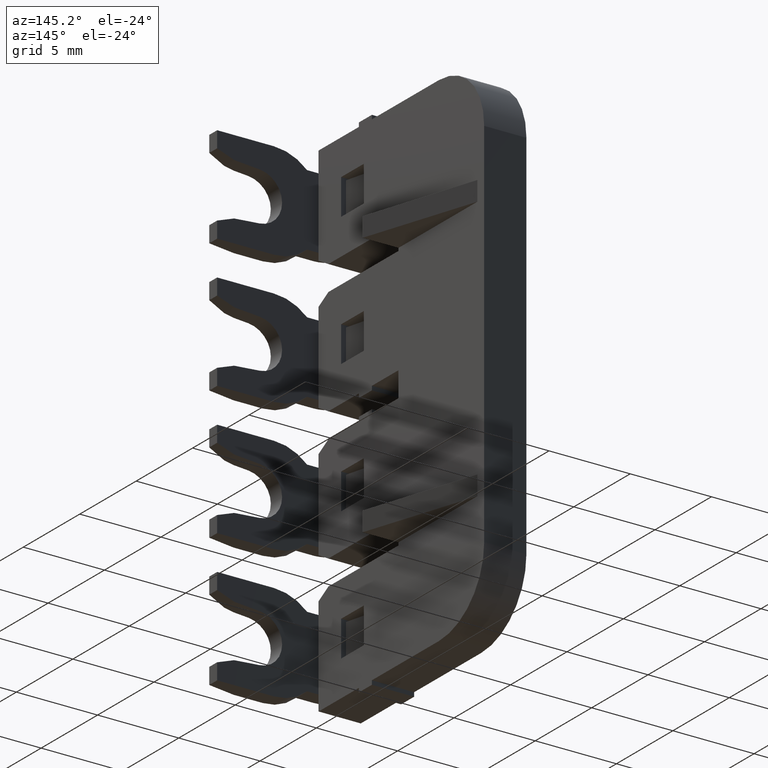
[diagram: clean part render]
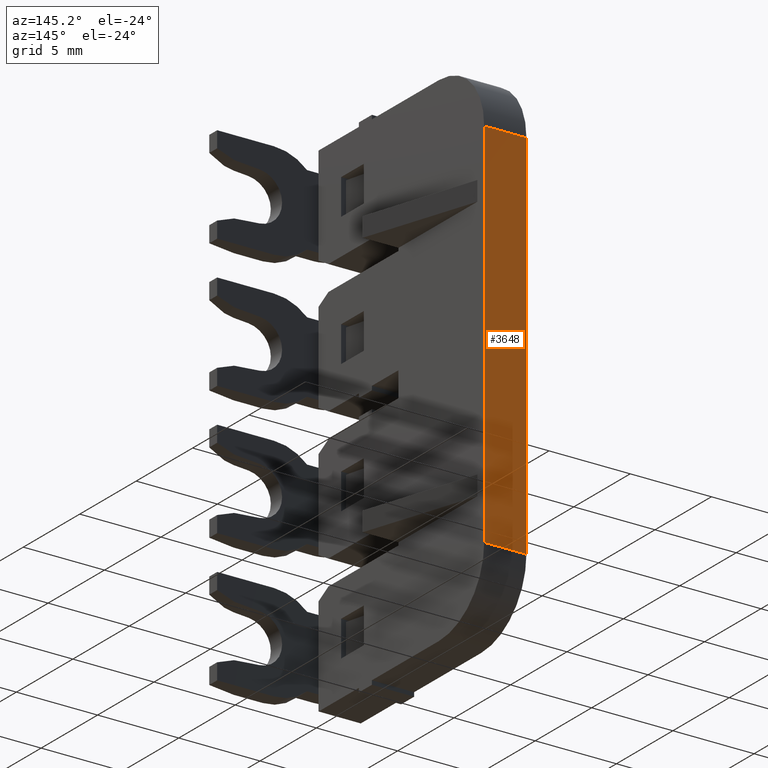
[diagram: same view with one face highlighted and labeled with its STEP entity id]
A machine part, auxiliary view. The second image highlights one B-rep face of the part: STEP entity #3648.
In plain terms, the highlighted planar face has unit normal (-0, 1, 0).
Its self-contained STEP definition (entity closure, byte-faithful):
#11 = VECTOR ( 'NONE', #3459, 1000.000000000000000 ) ;
#30 = VECTOR ( 'NONE', #2299, 1000.000000000000000 ) ;
#31 = VECTOR ( 'NONE', #3478, 1000.000000000000000 ) ;
#41 = VECTOR ( 'NONE', #3404, 1000.000000000000000 ) ;
#554 = AXIS2_PLACEMENT_3D ( 'NONE', #5633, #5617, #5618 ) ;
#1851 = EDGE_CURVE ( 'NONE', #5138, #4438, #3421, .T. ) ;
#1864 = EDGE_CURVE ( 'NONE', #5087, #4438, #3458, .T. ) ;
#1875 = EDGE_CURVE ( 'NONE', #4448, #5087, #3453, .T. ) ;
#1890 = EDGE_CURVE ( 'NONE', #4448, #5138, #3490, .T. ) ;
#2277 = CARTESIAN_POINT ( 'NONE',  ( 1512.445209356660100, 1094.934526901996200, 7.349999999999999600 ) ) ;
#2299 = DIRECTION ( 'NONE',  ( -3.497202527569245500E-015, -9.239259932875879000E-031, -1.000000000000000000 ) ) ;
#3403 = CARTESIAN_POINT ( 'NONE',  ( 1515.045209356660100, 1094.934526901996200, -19.69999999999999900 ) ) ;
#3404 = DIRECTION ( 'NONE',  ( 1.000000000000000000, 3.538835890992685300E-015, -3.039180497173570300E-015 ) ) ;
#3421 = LINE ( 'NONE', #3403, #41 ) ;
#3449 = CARTESIAN_POINT ( 'NONE',  ( 1515.045209356660100, 1094.934526901996200, 7.349999999999999600 ) ) ;
#3453 = LINE ( 'NONE', #3488, #31 ) ;
#3458 = LINE ( 'NONE', #3449, #11 ) ;
#3459 = DIRECTION ( 'NONE',  ( -3.250333119651810100E-015, -1.946166082738415700E-032, -1.000000000000000000 ) ) ;
#3478 = DIRECTION ( 'NONE',  ( 1.000000000000000000, 3.538835890992685300E-015, -3.461485742130050000E-015 ) ) ;
#3488 = CARTESIAN_POINT ( 'NONE',  ( 1515.045209356660100, 1094.934526901996200, 3.350000000000000100 ) ) ;
#3490 = LINE ( 'NONE', #2277, #30 ) ;
#3648 = ADVANCED_FACE ( 'NONE', ( #5630 ), #5649, .T. ) ;
#4039 = CARTESIAN_POINT ( 'NONE',  ( 1515.045209356660100, 1094.934526901996200, -19.69999999999999900 ) ) ;
#4070 = CARTESIAN_POINT ( 'NONE',  ( 1512.445209356660100, 1094.934526901996200, 3.350000000000009400 ) ) ;
#4322 = CARTESIAN_POINT ( 'NONE',  ( 1515.045209356660100, 1094.934526901996200, 3.350000000000000100 ) ) ;
#4353 = CARTESIAN_POINT ( 'NONE',  ( 1512.445209356660100, 1094.934526901996200, -19.69999999999999200 ) ) ;
#4438 = VERTEX_POINT ( 'NONE', #4039 ) ;
#4448 = VERTEX_POINT ( 'NONE', #4070 ) ;
#4609 = EDGE_LOOP ( 'NONE', ( #4877, #4866, #4876, #4883 ) ) ;
#4866 = ORIENTED_EDGE ( 'NONE', *, *, #1875, .T. ) ;
#4876 = ORIENTED_EDGE ( 'NONE', *, *, #1864, .T. ) ;
#4877 = ORIENTED_EDGE ( 'NONE', *, *, #1890, .F. ) ;
#4883 = ORIENTED_EDGE ( 'NONE', *, *, #1851, .F. ) ;
#5087 = VERTEX_POINT ( 'NONE', #4322 ) ;
#5138 = VERTEX_POINT ( 'NONE', #4353 ) ;
#5617 = DIRECTION ( 'NONE',  ( -3.663735981263015800E-015, 1.000000000000000000, 1.188890074073182200E-029 ) ) ;
#5618 = DIRECTION ( 'NONE',  ( -3.245021148230585200E-015, 0.0000000000000000000, -1.000000000000000000 ) ) ;
#5630 = FACE_OUTER_BOUND ( 'NONE', #4609, .T. ) ;
#5633 = CARTESIAN_POINT ( 'NONE',  ( 1512.445209356660100, 1094.934526901996200, 7.349999999999999600 ) ) ;
#5649 = PLANE ( 'NONE',  #554 ) ;